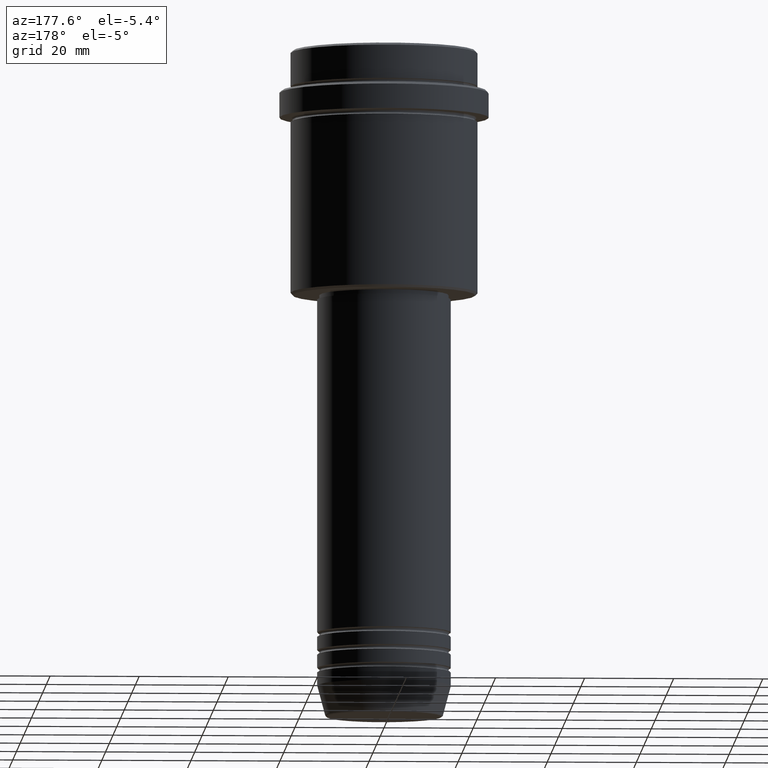
[diagram: clean part render]
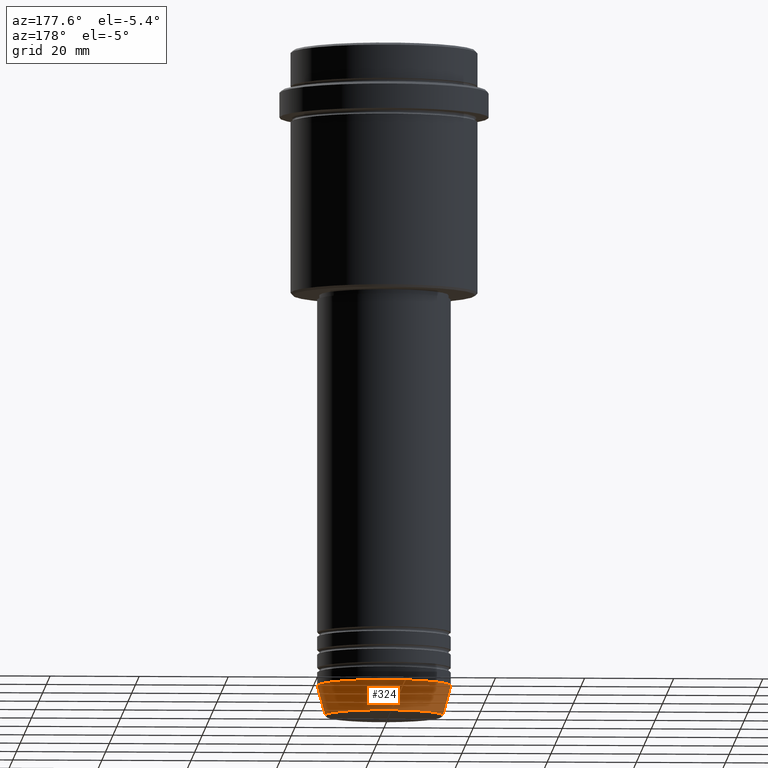
[diagram: same view with one face highlighted and labeled with its STEP entity id]
A machine part, auxiliary view. The second image highlights one B-rep face of the part: STEP entity #324.
In plain terms, the highlighted conical surface has half-angle 15 deg.
Its self-contained STEP definition (entity closure, byte-faithful):
#18 = DIRECTION ( 'NONE',  ( 1.000000000000000000, 0.000000000000000000, 0.000000000000000000 ) ) ;
#75 = CONICAL_SURFACE ( 'NONE', #254, 15.00000000000000000, 0.2617993877991510177 ) ;
#88 = ORIENTED_EDGE ( 'NONE', *, *, #139, .F. ) ;
#113 = VERTEX_POINT ( 'NONE', #1187 ) ;
#139 = EDGE_CURVE ( 'NONE', #1372, #865, #420, .T. ) ;
#158 = EDGE_CURVE ( 'NONE', #357, #113, #431, .T. ) ;
#172 = CARTESIAN_POINT ( 'NONE',  ( 13.22365507213718949, 0.000000000000000000, -149.6294095225512422 ) ) ;
#222 = CARTESIAN_POINT ( 'NONE',  ( 0.000000000000000000, 0.000000000000000000, -149.6294095225512422 ) ) ;
#241 = EDGE_LOOP ( 'NONE', ( #633, #1402, #645, #88 ) ) ;
#254 = AXIS2_PLACEMENT_3D ( 'NONE', #1161, #482, #285 ) ;
#283 = DIRECTION ( 'NONE',  ( 1.000000000000000000, 0.000000000000000000, 0.000000000000000000 ) ) ;
#285 = DIRECTION ( 'NONE',  ( 1.000000000000000000, 0.000000000000000000, 0.000000000000000000 ) ) ;
#324 = ADVANCED_FACE ( 'NONE', ( #492 ), #75, .T. ) ;
#337 = AXIS2_PLACEMENT_3D ( 'NONE', #1048, #377, #283 ) ;
#338 = VECTOR ( 'NONE', #1214, 1000.000000000000000 ) ;
#357 = VERTEX_POINT ( 'NONE', #617 ) ;
#363 = VECTOR ( 'NONE', #539, 1000.000000000000000 ) ;
#377 = DIRECTION ( 'NONE',  ( -0.000000000000000000, -0.000000000000000000, 1.000000000000000000 ) ) ;
#420 = LINE ( 'NONE', #975, #363 ) ;
#431 = LINE ( 'NONE', #639, #338 ) ;
#482 = DIRECTION ( 'NONE',  ( -0.000000000000000000, -0.000000000000000000, 1.000000000000000000 ) ) ;
#492 = FACE_OUTER_BOUND ( 'NONE', #241, .T. ) ;
#539 = DIRECTION ( 'NONE',  ( 0.2588190451025222938, 0.000000000000000000, 0.9659258262890678681 ) ) ;
#617 = CARTESIAN_POINT ( 'NONE',  ( -13.22365507213718949, 1.728200442216588386E-15, -149.6294095225512422 ) ) ;
#633 = ORIENTED_EDGE ( 'NONE', *, *, #666, .T. ) ;
#639 = CARTESIAN_POINT ( 'NONE',  ( -15.00000000000000000, 1.836970198721029589E-15, -143.0000000000000000 ) ) ;
#645 = ORIENTED_EDGE ( 'NONE', *, *, #1051, .F. ) ;
#666 = EDGE_CURVE ( 'NONE', #1372, #357, #1272, .T. ) ;
#729 = CIRCLE ( 'NONE', #337, 15.00000000000000000 ) ;
#865 = VERTEX_POINT ( 'NONE', #1019 ) ;
#975 = CARTESIAN_POINT ( 'NONE',  ( 15.00000000000000000, 0.000000000000000000, -143.0000000000000000 ) ) ;
#996 = DIRECTION ( 'NONE',  ( -0.000000000000000000, -0.000000000000000000, 1.000000000000000000 ) ) ;
#1019 = CARTESIAN_POINT ( 'NONE',  ( 15.00000000000000000, 0.000000000000000000, -143.0000000000000000 ) ) ;
#1048 = CARTESIAN_POINT ( 'NONE',  ( 0.000000000000000000, 0.000000000000000000, -143.0000000000000000 ) ) ;
#1051 = EDGE_CURVE ( 'NONE', #865, #113, #729, .T. ) ;
#1161 = CARTESIAN_POINT ( 'NONE',  ( 0.000000000000000000, 0.000000000000000000, -143.0000000000000000 ) ) ;
#1187 = CARTESIAN_POINT ( 'NONE',  ( -15.00000000000000000, 1.836970198721029589E-15, -143.0000000000000000 ) ) ;
#1214 = DIRECTION ( 'NONE',  ( -0.2588190451025222938, 3.169619151431783430E-17, 0.9659258262890678681 ) ) ;
#1272 = CIRCLE ( 'NONE', #1307, 13.22365507213718949 ) ;
#1307 = AXIS2_PLACEMENT_3D ( 'NONE', #222, #996, #18 ) ;
#1372 = VERTEX_POINT ( 'NONE', #172 ) ;
#1402 = ORIENTED_EDGE ( 'NONE', *, *, #158, .T. ) ;